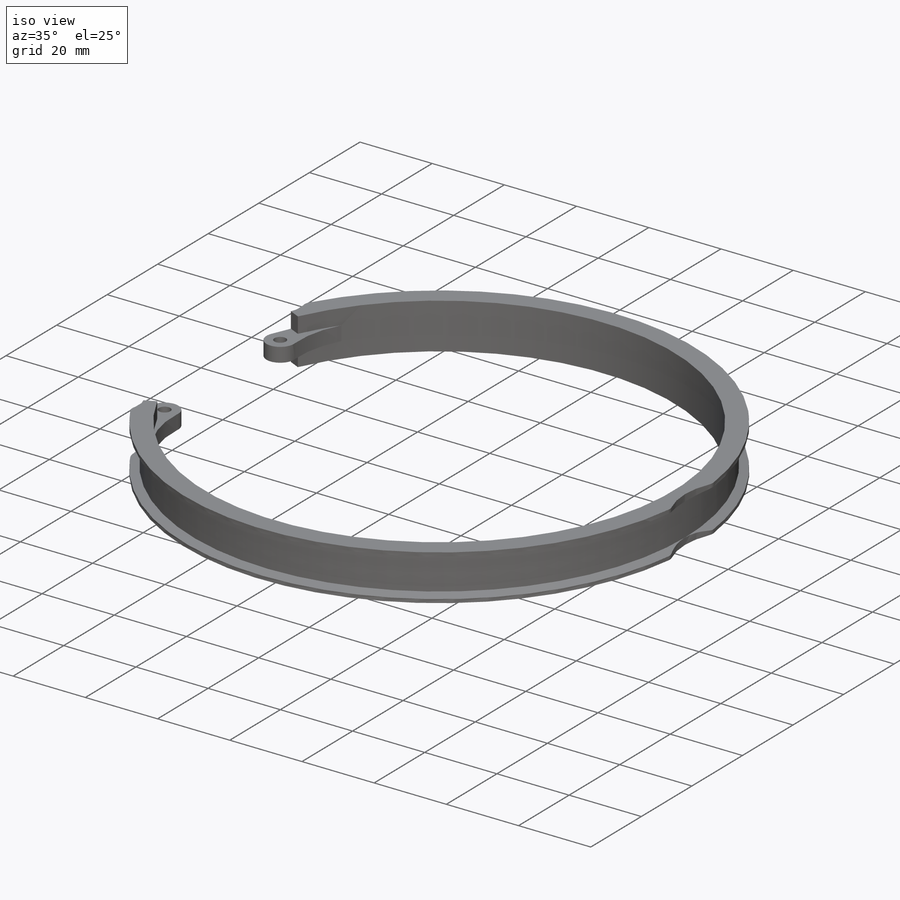
[diagram: iso view]
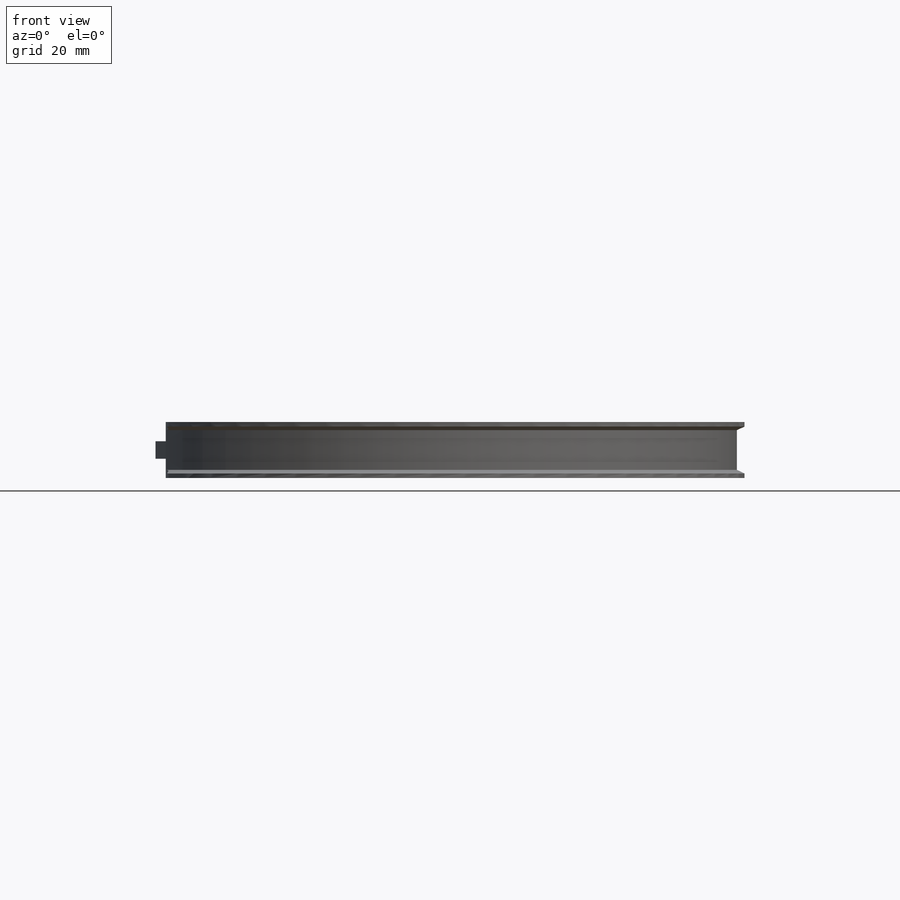
[diagram: front view]
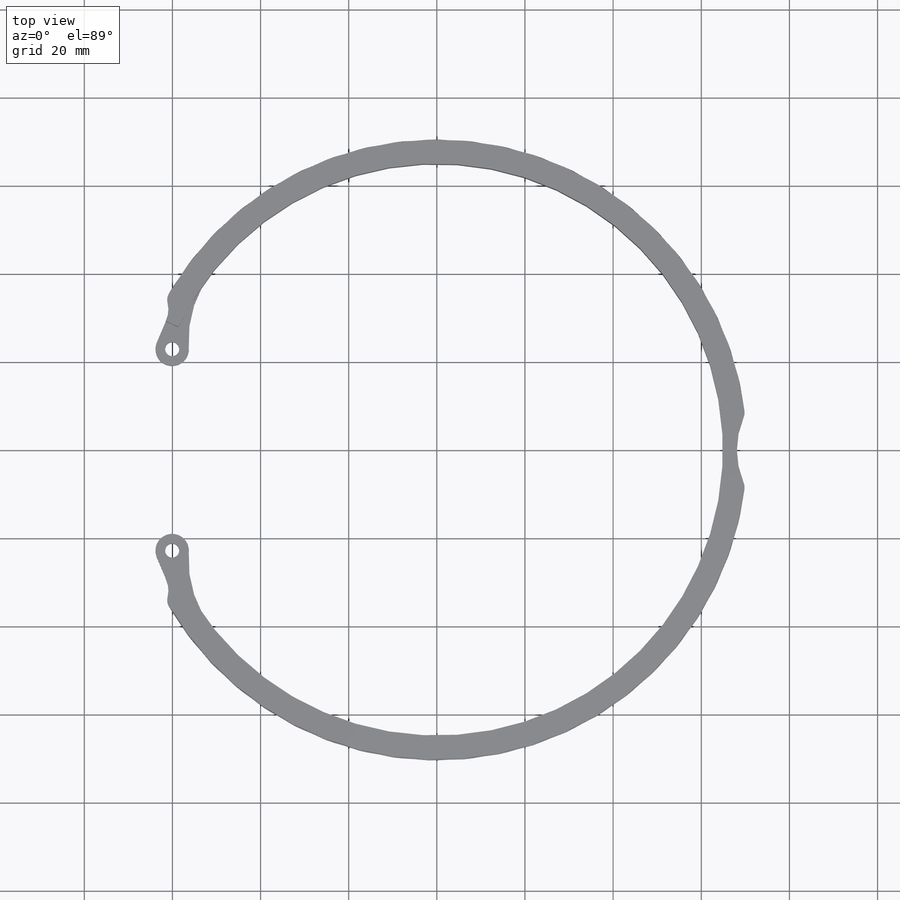
[diagram: top view]
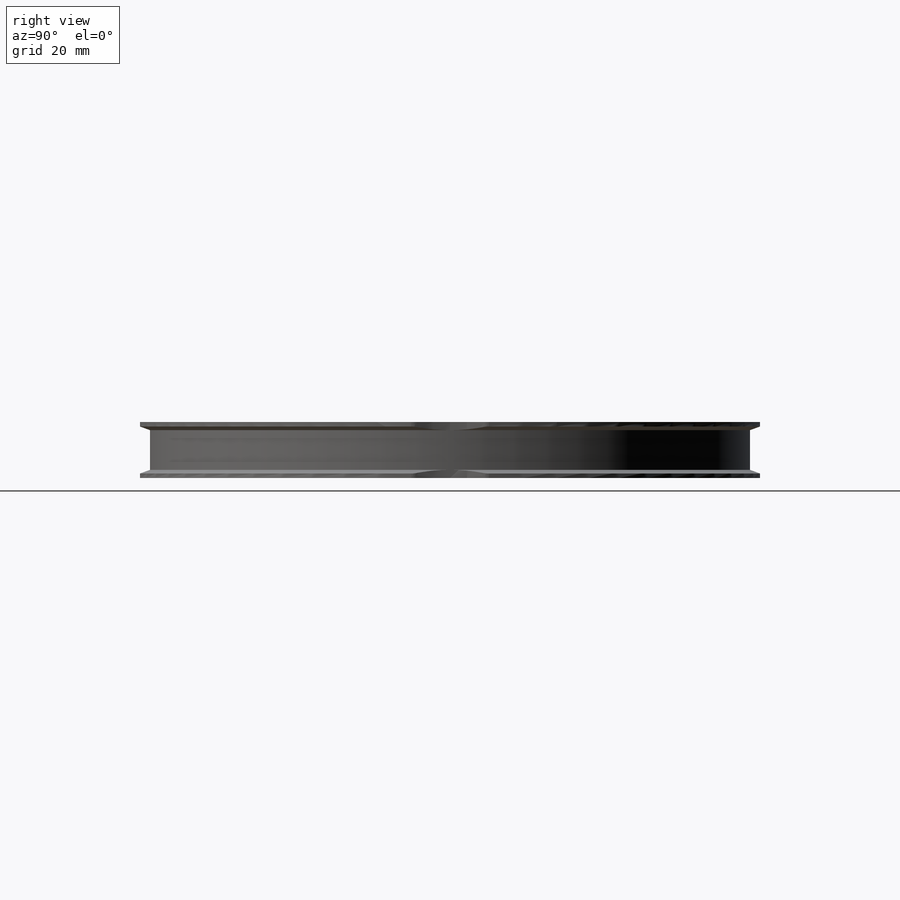
[diagram: right view]
SOLIDWORKS PART (.sldprt)
format: sldprt  version: not decoded by parser v0  size: 313,856 bytes
history: native  units: mm
features: sketch x5, cut_extrude x2, material x1, plane x1, revolve x1, extrude x1, fillet x1 (+13 scaffold rows collapsed)
feature tree (25):
  scaffold x13  (default folders/planes/origin — collapsed)
  material  "Material <not specified>"
  sketch  "Sketch1"  dims[c1.D1=~79.401904mm c2.D1=25.37deg]
  plane  "Plane1"
  sketch  "Sketch2"  dims[c1.D1=64.897mm c1.D2=70.358mm c1.D3=3.175mm c1.D4=6.35mm c1.D5=1.016mm c1.D6=2.286mm c2.D6=20.0deg c2.D7=~9.003928mm]
  revolve  "Revolve1"  Angle=309.26deg
  sketch  "Sketch3"  dims[c1.D2=128.524mm c1.D3=3.175mm c1.D4=3.175mm c1.D7=136.144mm c1.D9=3.81mm c1.D10=~56.526119mm c1.D1=~89.136557mm c2.D1=25.37deg c2.D5=45.72mm c2.D6=22.86mm c2.D8=~80.500109mm c3.D8=~20.838266deg c3.D10=~98.145615mm c4.D10=35.0deg]
  extrude  "Boss-Extrude1"  Depth=1.985162mm
  sketch  "Sketch4"  dims[c1.D1=12.7mm c1.D2=~132.746507mm c2.D2=25.37deg]
  cut_extrude  "Cut-Extrude1"  Depth=12.7mm
  sketch  "Sketch5"  dims[D1=38.1mm D2=136.144mm]
  cut_extrude  "Cut-Extrude2"  Depth=12.7mm
  fillet  "Fillet1"  Radius=2.54mm
decode coverage: 10 of 10 modeling features carry decoded parameters
note: ~ marks probable driven/reference dimensions
note: suppression state not decoded; provenance and decode notes live in map.json
